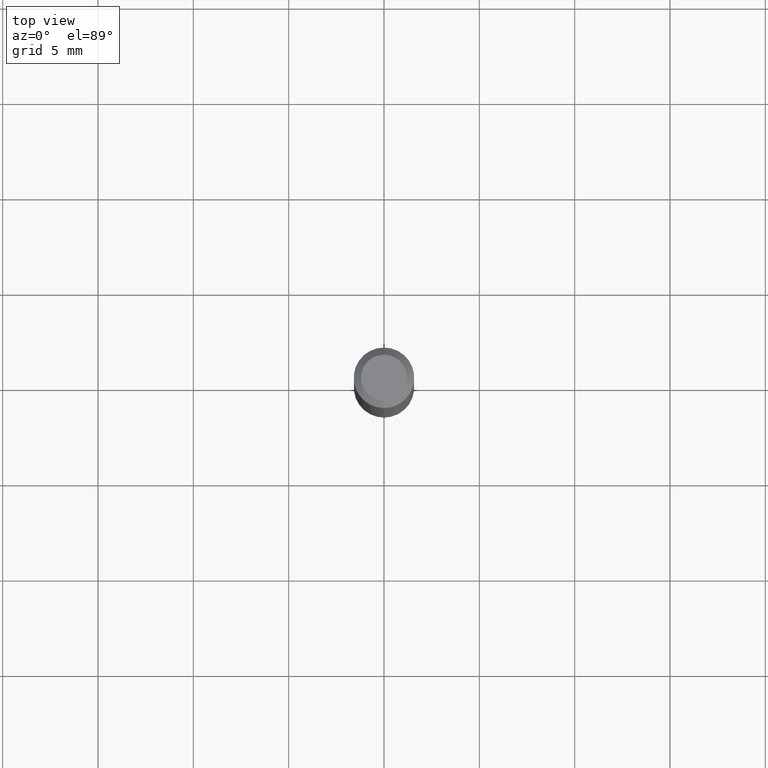
[diagram: clean part render]
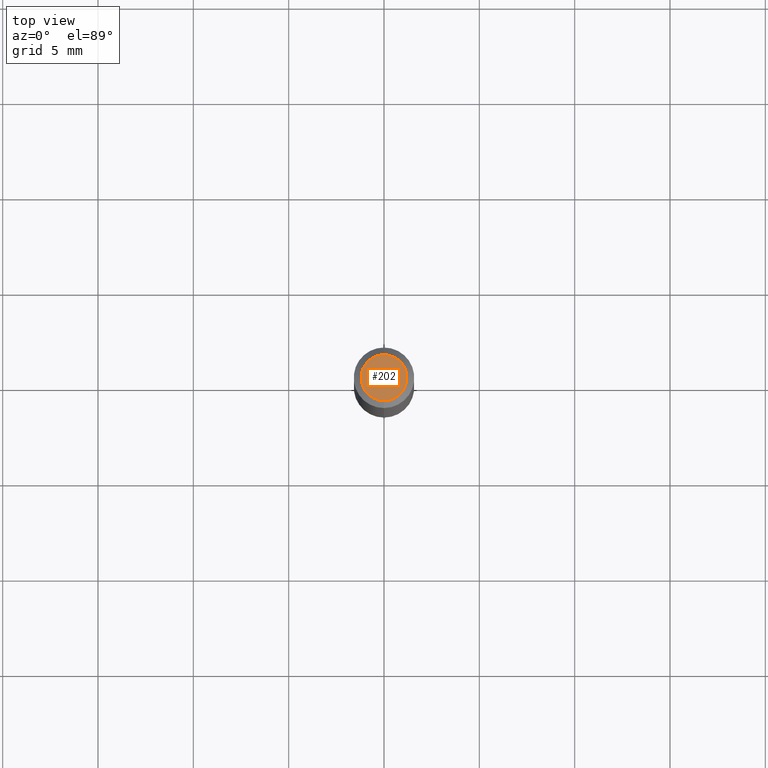
[diagram: same view with one face highlighted and labeled with its STEP entity id]
A machine part, top view. The second image highlights one B-rep face of the part: STEP entity #202.
In plain terms, the highlighted planar face has unit normal (0, -0, -1).
Its self-contained STEP definition (entity closure, byte-faithful):
#8 = AXIS2_PLACEMENT_3D ( 'NONE', #204, #370, #127 ) ;
#26 = CARTESIAN_POINT ( 'NONE',  ( -3.773273898774340269E-16, -0.04749999999999999362, 1.569856965421183228E-16 ) ) ;
#55 = CARTESIAN_POINT ( 'NONE',  ( 3.840629472727447874E-16, 0.04749999999999999362, -1.747056831868805136E-16 ) ) ;
#95 = FACE_OUTER_BOUND ( 'NONE', #478, .T. ) ;
#107 = ORIENTED_EDGE ( 'NONE', *, *, #450, .T. ) ;
#127 = DIRECTION ( 'NONE',  ( 6.982962677686265922E-15, 1.000000000000000000, -3.491488207673672253E-15 ) ) ;
#130 = CIRCLE ( 'NONE', #210, 0.04749999999999999362 ) ;
#148 = DIRECTION ( 'NONE',  ( -6.982962677686266711E-15, -1.000000000000000000, 3.491488207673672253E-15 ) ) ;
#170 = PLANE ( 'NONE',  #8 ) ;
#187 = VERTEX_POINT ( 'NONE', #26 ) ;
#202 = ADVANCED_FACE ( 'NONE', ( #95 ), #170, .F. ) ;
#204 = CARTESIAN_POINT ( 'NONE',  ( 3.316907271900976096E-16, 0.04749999999999999362, -1.702756865256899659E-16 ) ) ;
#210 = AXIS2_PLACEMENT_3D ( 'NONE', #319, #270, #148 ) ;
#230 = VERTEX_POINT ( 'NONE', #55 ) ;
#266 = DIRECTION ( 'NONE',  ( -6.982962677686266711E-15, -1.000000000000000000, 3.491488207673672253E-15 ) ) ;
#270 = DIRECTION ( 'NONE',  ( -2.445464009706415919E-29, 3.491488207673672253E-15, 1.000000000000000000 ) ) ;
#286 = CIRCLE ( 'NONE', #342, 0.04749999999999999362 ) ;
#298 = ORIENTED_EDGE ( 'NONE', *, *, #337, .T. ) ;
#319 = CARTESIAN_POINT ( 'NONE',  ( 2.166679479612211381E-46, -3.093456220516102993E-32, -8.859993322381083085E-18 ) ) ;
#337 = EDGE_CURVE ( 'NONE', #187, #230, #286, .T. ) ;
#342 = AXIS2_PLACEMENT_3D ( 'NONE', #510, #386, #266 ) ;
#370 = DIRECTION ( 'NONE',  ( 2.445464009706415639E-29, -3.491488207673672253E-15, -1.000000000000000000 ) ) ;
#386 = DIRECTION ( 'NONE',  ( -2.445464009706415919E-29, 3.491488207673672253E-15, 1.000000000000000000 ) ) ;
#450 = EDGE_CURVE ( 'NONE', #230, #187, #130, .T. ) ;
#478 = EDGE_LOOP ( 'NONE', ( #107, #298 ) ) ;
#510 = CARTESIAN_POINT ( 'NONE',  ( 2.166679479612211381E-46, -3.093456220516102993E-32, -8.859993322381083085E-18 ) ) ;